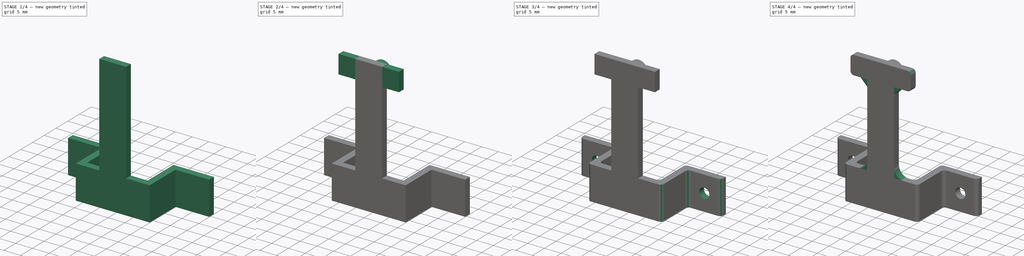
[diagram: build sequence overview — one tinted view per stage of 4, left to right]
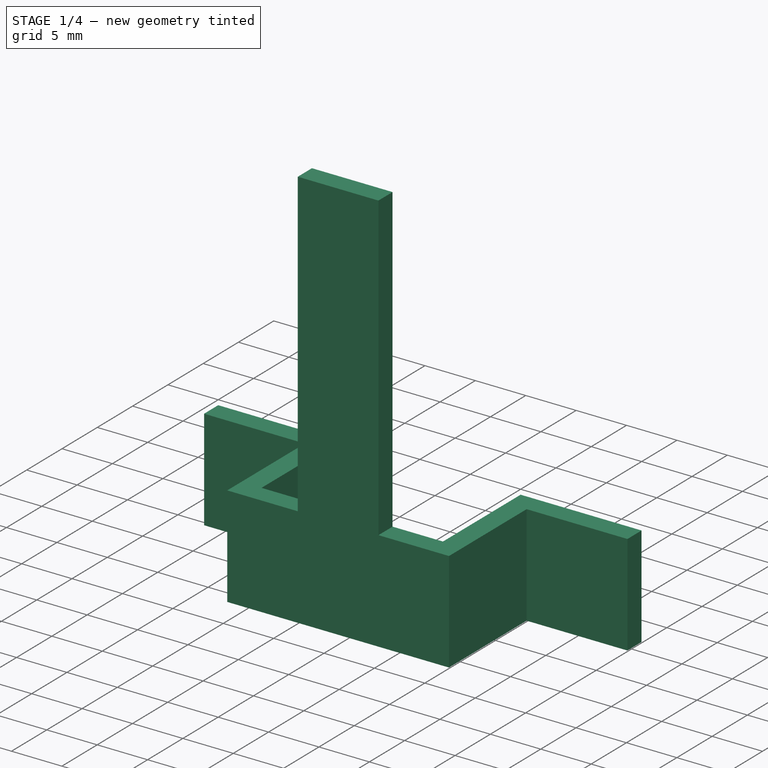
[diagram: stage 1 of 4 — iso view after this stage's code; geometry added in this stage tinted green]
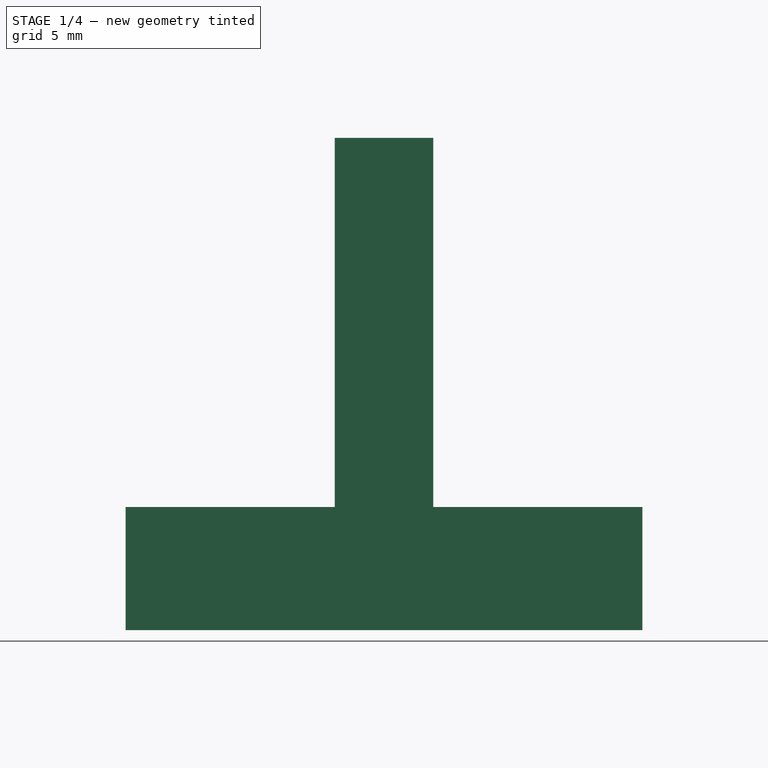
[diagram: stage 1 of 4 — front view after this stage's code; geometry added in this stage tinted green]
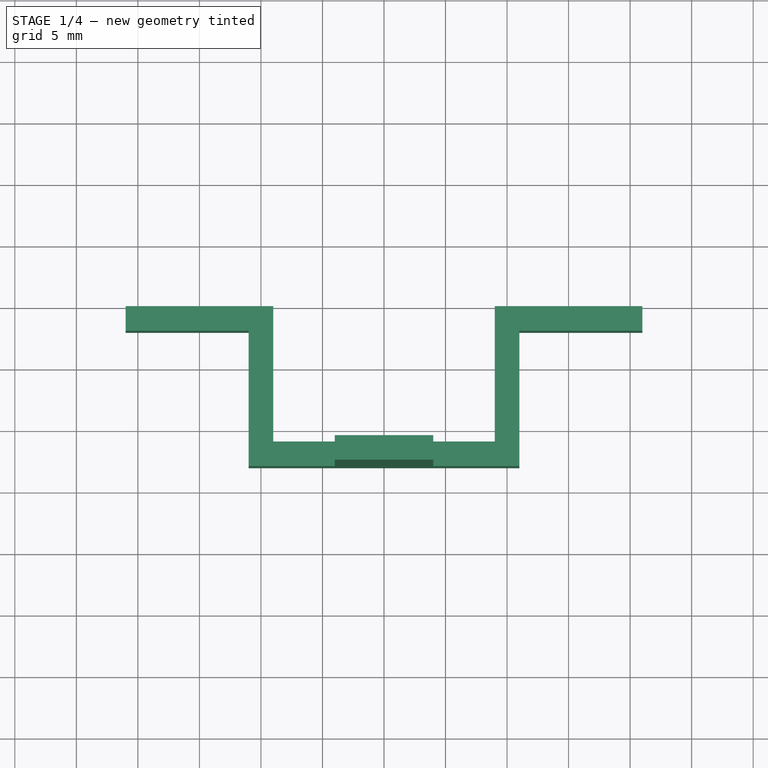
[diagram: stage 1 of 4 — top view after this stage's code; geometry added in this stage tinted green]
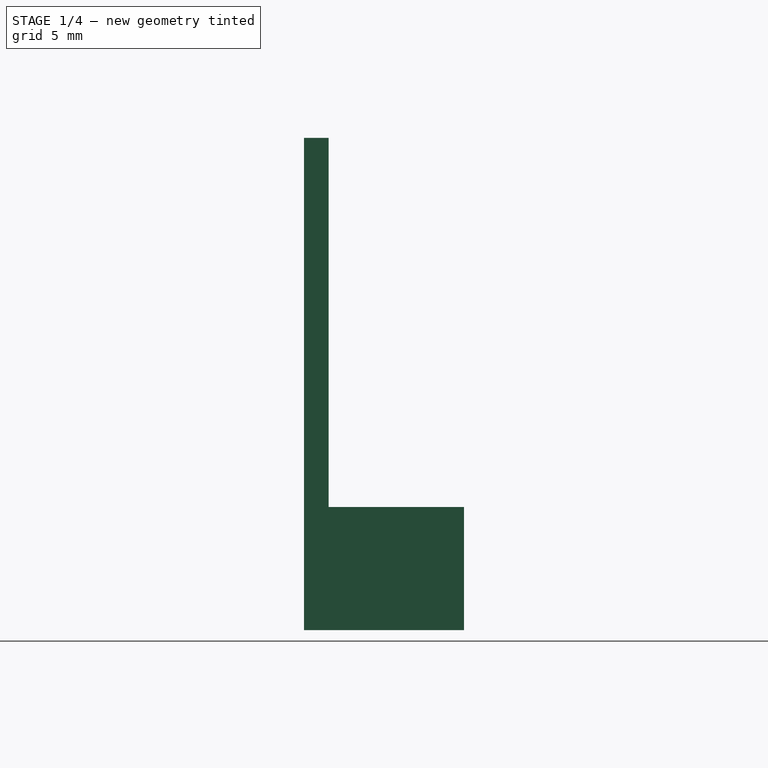
[diagram: stage 1 of 4 — right view after this stage's code; geometry added in this stage tinted green]
FCSTD DOCUMENT  (FreeCAD 0.21R33771 (Git))
Label: boom_klemme
License: All rights reserved
LicenseURL: http://en.wikipedia.org/wiki/All_rights_reserved
objects: Sketcher::SketchObject×6, PartDesign::Pad×4, PartDesign::Fillet×3, PartDesign::Mirrored×2, PartDesign::Line×1, PartDesign::Hole×1, PartDesign::Chamfer×1, PartDesign::Body×1
note: 28 computed .brp shape members not serialized (recipe doc carries the construction recipe); baked Part::Feature solids carry a one-line shape summary decoded from their .brp

FEATURE [Sketcher::SketchObject] Sketch
  FullyConstrained = true
  MapMode = 5
  Support = -> [XY_Plane]
  expr: Constraints[17] = (17 + 1) / 2
  sketch-geometry (8):
    g0: LineSegment StartX=-21 StartY=0 StartZ=0 EndX=-9 EndY=0 EndZ=0
    g1: LineSegment StartX=-9 StartY=0 StartZ=0 EndX=-9 EndY=-11 EndZ=0
    g2: LineSegment StartX=-9 StartY=-11 StartZ=0 EndX=0 EndY=-11 EndZ=0
    g3: LineSegment StartX=-21 StartY=0 StartZ=0 EndX=-21 EndY=-2 EndZ=0
    g4: LineSegment StartX=-21 StartY=-2 StartZ=0 EndX=-11 EndY=-2 EndZ=0
    g5: LineSegment StartX=-11 StartY=-2 StartZ=0 EndX=-11 EndY=-13 EndZ=0
    g6: LineSegment StartX=-11 StartY=-13 StartZ=0 EndX=0 EndY=-13 EndZ=0
    g7: LineSegment StartX=0 StartY=-13 StartZ=0 EndX=0 EndY=-11 EndZ=0
  constraints (24):
    c: Horizontal(g0)
    c: Coincident(g1,g0)
    c: Vertical(g1)
    c: Coincident(g2,g1)
    c: Coincident(g3,g0)
    c: Vertical(g3)
    c: Coincident(g4,g3)
    c: Horizontal(g4)
    c: Coincident(g5,g4)
    c: Vertical(g5)
    c: Coincident(g6,g5)
    c: PointOnObject(g6,g-2)
    c: Horizontal(g6)
    c: Coincident(g7,g6)
    c: Coincident(g7,g2)
    c: Vertical(g7)
    c: Horizontal(g2)
    c: Distance(g2) = 9
    c: Distance(g4,g1) = 2
    c: Distance(g3) = 2
    c: Distance(g7) = 2
    c: PointOnObject(g0,g-1)
    c: Distance(g-1,g2) = 11
    c: Distance(g4) = 10
FEATURE [PartDesign::Pad] Pad
  Direction = (0,0,1)
  Length = 10
  Length2 = 10
  Profile = -> Sketch
  ReferenceAxis = -> Sketch [N_Axis]
  Type = 0
FEATURE [PartDesign::Mirrored] Mirrored
  BaseFeature = -> Pad
  MirrorPlane = -> Sketch [V_Axis]
  Originals = -> [Pad]
FEATURE [Sketcher::SketchObject] Sketch001
  ExternalGeometry = -> [Mirrored]
  FullyConstrained = true
  MapMode = 5
  Placement = pos=(0,0,10) rot=(0,0,1;0rad)
  Support = -> [Mirrored]
  sketch-geometry (4):
    g0: LineSegment StartX=-4 StartY=-11 StartZ=0 EndX=-4 EndY=-13 EndZ=0
    g1: LineSegment StartX=4 StartY=-11 StartZ=0 EndX=4 EndY=-13 EndZ=0
    g2: LineSegment StartX=-4 StartY=-13 StartZ=0 EndX=4 EndY=-13 EndZ=0
    g3: LineSegment StartX=4 StartY=-11 StartZ=0 EndX=-4 EndY=-11 EndZ=0
  constraints (11):
    c: PointOnObject(g0,g-6)
    c: PointOnObject(g0,g-5)
    c: PointOnObject(g1,g-4)
    c: Coincident(g2,g0)
    c: Coincident(g2,g1)
    c: Coincident(g3,g1)
    c: Coincident(g3,g0)
    c: Vertical(g0)
    c: Vertical(g1)
    c: Symmetric(g0,g1,g-6)
    c: Distance(g2) = 8
FEATURE [PartDesign::Pad] Pad001
  BaseFeature = -> Mirrored
  Direction = (0,0,1)
  Length = 30
  Length2 = 10
  Profile = -> Sketch001
  ReferenceAxis = -> Sketch001 [N_Axis]
  Type = 0
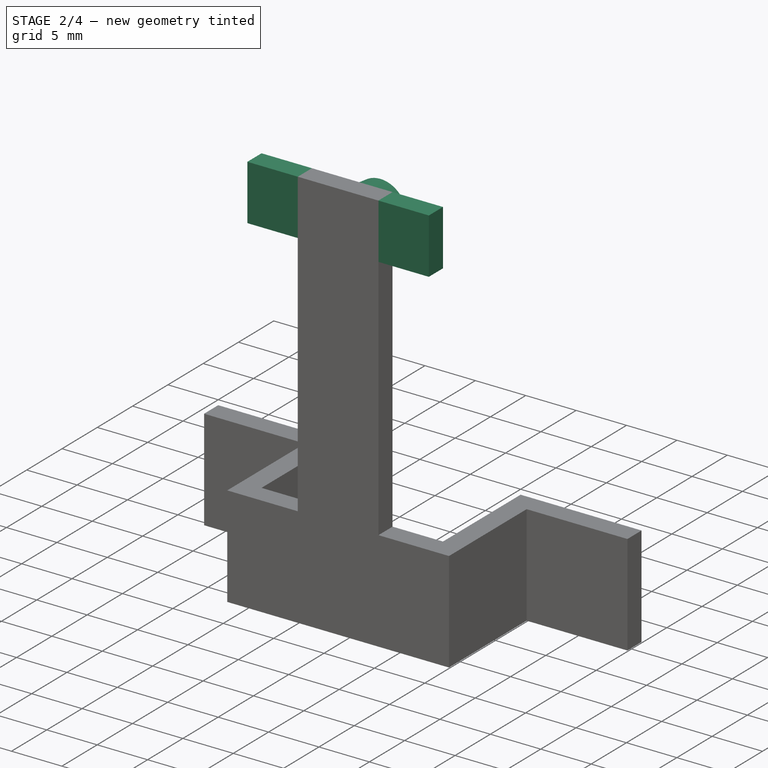
[diagram: stage 2 of 4 — iso view after this stage's code; geometry added in this stage tinted green]
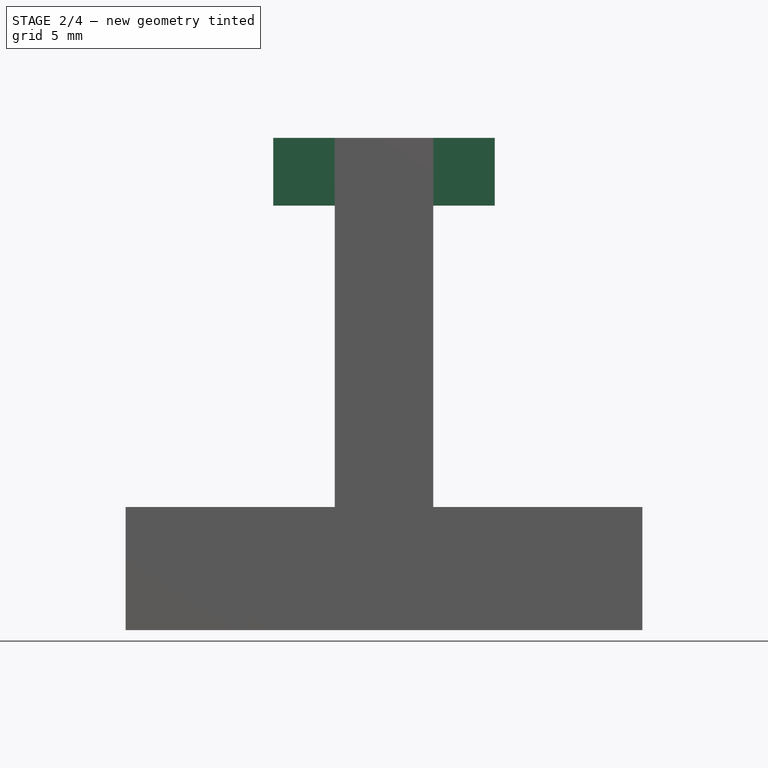
[diagram: stage 2 of 4 — front view after this stage's code; geometry added in this stage tinted green]
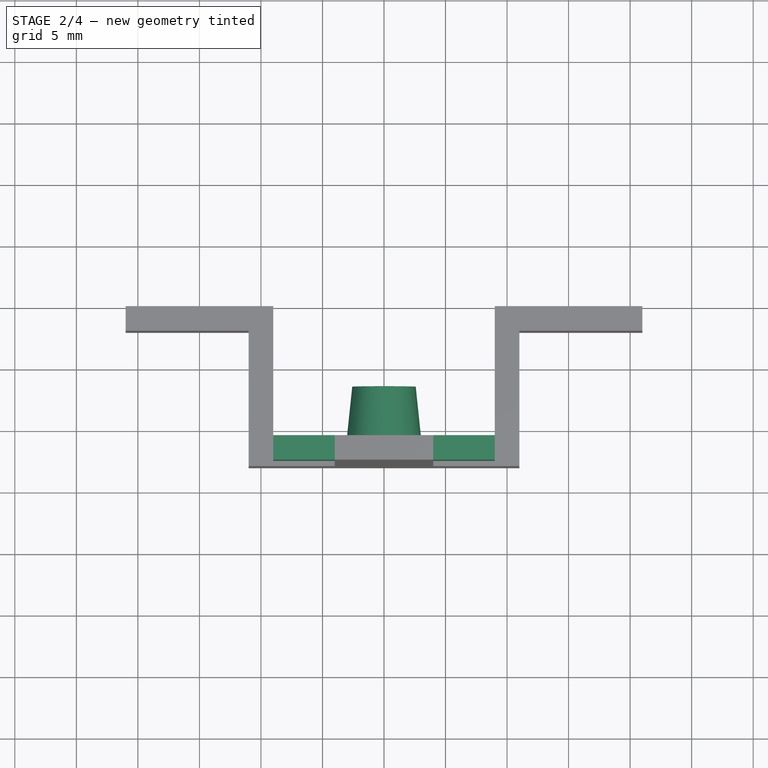
[diagram: stage 2 of 4 — top view after this stage's code; geometry added in this stage tinted green]
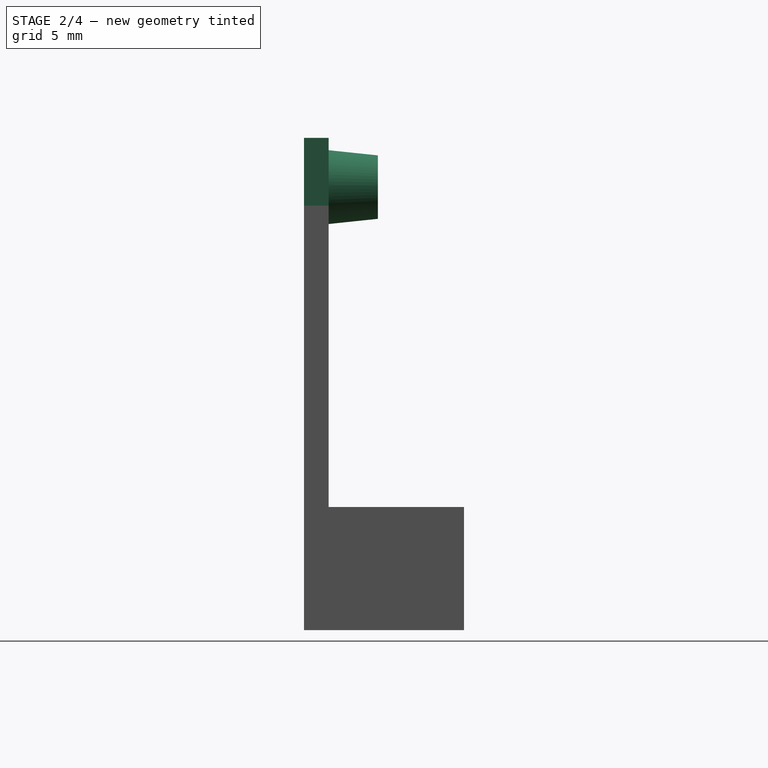
[diagram: stage 2 of 4 — right view after this stage's code; geometry added in this stage tinted green]
FEATURE [Sketcher::SketchObject] Sketch002
  ExternalGeometry = -> [Pad001]
  FullyConstrained = true
  MapMode = 5
  Placement = pos=(0,-11,0) rot=(0,0.707107,0.707107;3.14159rad)
  Support = -> [Pad001]
  expr: Constraints[1] = 5 + 1
  sketch-geometry (3):
    g0: Circle CenterX=0 CenterY=36 CenterZ=0 NormalX=0 NormalY=0 NormalZ=1 AngleXU=0 Radius=3
    g1: LineSegment StartX=-4 StartY=40 StartZ=0 EndX=-4 EndY=32 EndZ=0
    g2: LineSegment StartX=-4 StartY=32 StartZ=0 EndX=4 EndY=40 EndZ=0
  constraints (8):
    c: PointOnObject(g0,g-2)
    c: Diameter(g0) = 6
    c: Coincident(g1,g-3)
    c: Vertical(g1)
    c: Equal(g1,g-3)
    c: Coincident(g2,g1)
    c: Coincident(g2,g-3)
    c: PointOnObject(g0,g2)
FEATURE [PartDesign::Pad] Pad002
  BaseFeature = -> Pad001
  Direction = (0,1,-2e-16)
  Length = 4
  Length2 = 10
  Profile = -> Sketch002
  ReferenceAxis = -> Sketch002 [N_Axis]
  TaperAngle = -6
  Type = 0
FEATURE [Sketcher::SketchObject] Sketch003
  ExternalGeometry = -> [Pad002]
  FullyConstrained = true
  MapMode = 5
  Placement = pos=(0,0,40) rot=(0,0,1;0rad)
  Support = -> [Pad002]
  sketch-geometry (4):
    g0: LineSegment StartX=-4 StartY=-11 StartZ=0 EndX=4 EndY=-11 EndZ=0
    g1: LineSegment StartX=4 StartY=-13 StartZ=0 EndX=4 EndY=-11 EndZ=0
    g2: LineSegment StartX=4 StartY=-13 StartZ=0 EndX=-4 EndY=-13 EndZ=0
    g3: LineSegment StartX=-4 StartY=-13 StartZ=0 EndX=-4 EndY=-11 EndZ=0
  constraints (10):
    c: Coincident(g0,g-4)
    c: Horizontal(g0)
    c: Coincident(g1,g-3)
    c: Coincident(g1,g0)
    c: Vertical(g1)
    c: Coincident(g2,g1)
    c: Horizontal(g2)
    c: Coincident(g3,g2)
    c: Coincident(g3,g0)
    c: Vertical(g3)
FEATURE [PartDesign::Line] DatumLine
  AttacherType = Attacher::AttachEngineLine
  AttachmentOffset = pos=(-11,0,0) rot=(0,0,1;0rad)
  Length = 20
  MapMode = 29
  Placement = pos=(0,-24,40) rot=(0.57735,0.57735,0.57735;2.0944rad)
  ResizeMode = 0
  Support = -> [Pad002]
FEATURE [Sketcher::SketchObject] Sketch004
  ExternalGeometry = -> [Pad002]
  FullyConstrained = true
  MapMode = 5
  Placement = pos=(-4,0,0) rot=(0.57735,-0.57735,-0.57735;2.0944rad)
  Support = -> [Pad002]
  sketch-geometry (4):
    g0: LineSegment StartX=11 StartY=40 StartZ=0 EndX=13 EndY=40 EndZ=0
    g1: LineSegment StartX=13 StartY=40 StartZ=0 EndX=13 EndY=34.5 EndZ=0
    g2: LineSegment StartX=13 StartY=34.5 StartZ=0 EndX=11 EndY=34.5 EndZ=0
    g3: LineSegment StartX=11 StartY=34.5 StartZ=0 EndX=11 EndY=40 EndZ=0
  constraints (11):
    c: Coincident(g0,g1)
    c: Coincident(g1,g2)
    c: Coincident(g2,g3)
    c: Coincident(g3,g0)
    c: Horizontal(g0)
    c: Horizontal(g2)
    c: Vertical(g1)
    c: Vertical(g3)
    c: Coincident(g0,g-4)
    c: PointOnObject(g1,g-3)
    c: Distance(g1) = 5.5
FEATURE [PartDesign::Pad] Pad003
  BaseFeature = -> Pad002
  Direction = (-1,0,0)
  Length = 5
  Length2 = 10
  Profile = -> Sketch004
  ReferenceAxis = -> Sketch004 [N_Axis]
  Type = 0
FEATURE [PartDesign::Mirrored] Mirrored001
  BaseFeature = -> Pad003
  MirrorPlane = -> YZ_Plane
  Originals = -> [Pad003]
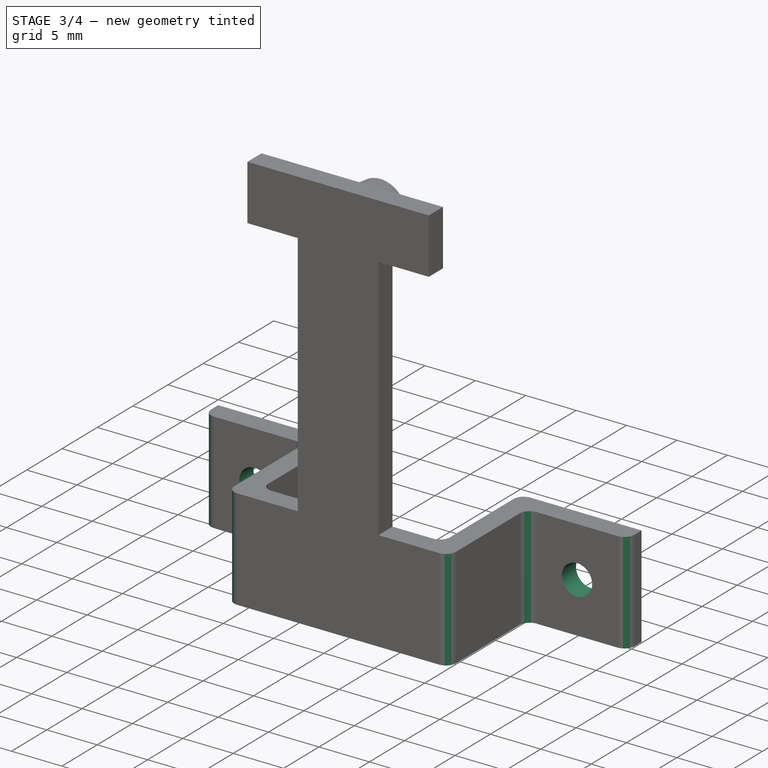
[diagram: stage 3 of 4 — iso view after this stage's code; geometry added in this stage tinted green]
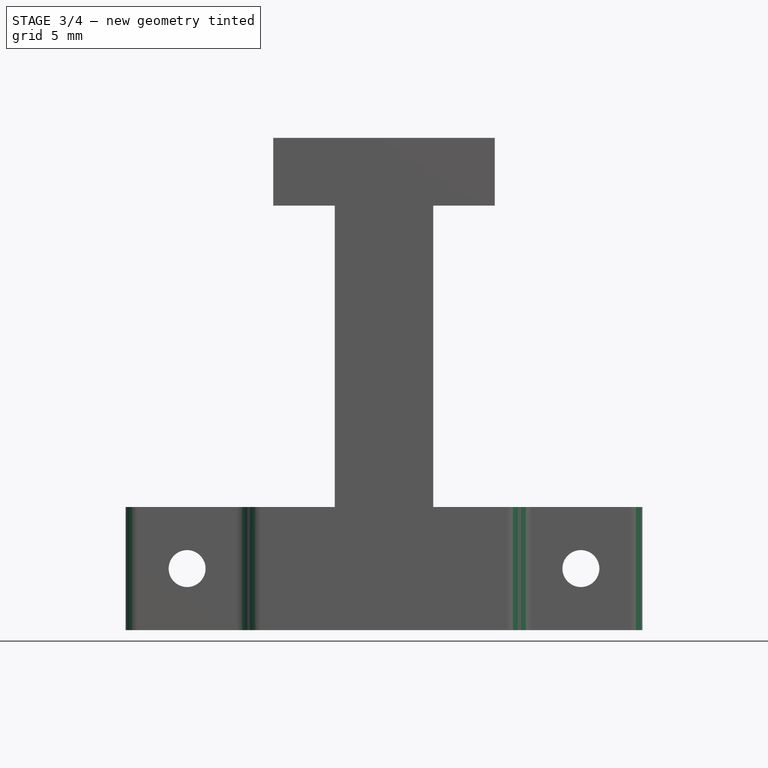
[diagram: stage 3 of 4 — front view after this stage's code; geometry added in this stage tinted green]
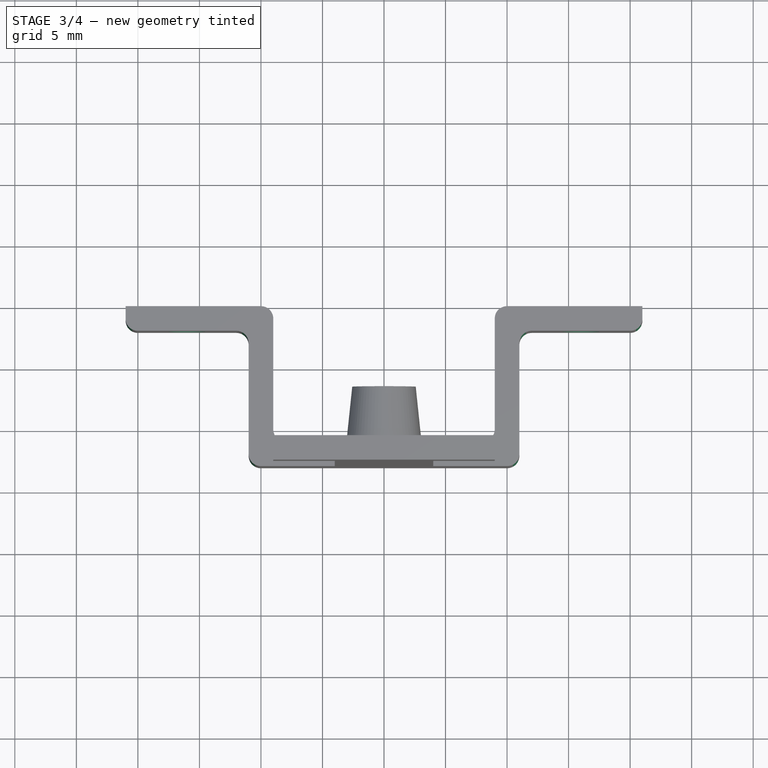
[diagram: stage 3 of 4 — top view after this stage's code; geometry added in this stage tinted green]
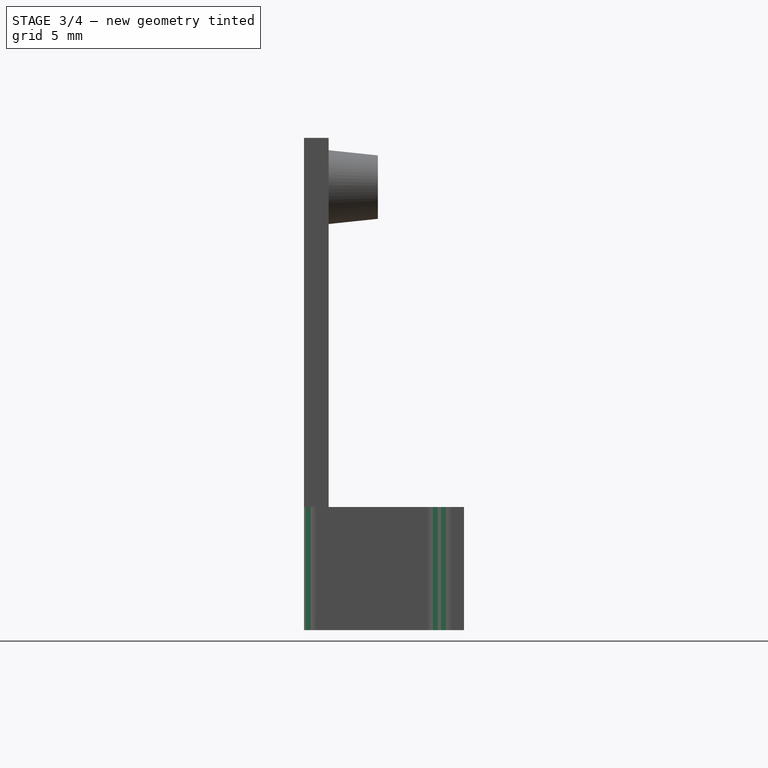
[diagram: stage 3 of 4 — right view after this stage's code; geometry added in this stage tinted green]
FEATURE [Sketcher::SketchObject] Sketch005
  ExternalGeometry = -> [Mirrored001]
  FullyConstrained = true
  MapMode = 5
  Placement = pos=(0,-2,0) rot=(1,0,0;1.5708rad)
  Support = -> [Mirrored001]
  sketch-geometry (5):
    g0: Circle CenterX=-16 CenterY=5 CenterZ=0 NormalX=0 NormalY=0 NormalZ=1 AngleXU=0 Radius=1.5
    g1: Circle CenterX=16 CenterY=5 CenterZ=0 NormalX=0 NormalY=0 NormalZ=1 AngleXU=0 Radius=1.5
    g2: LineSegment StartX=-21 StartY=5 StartZ=0 EndX=21 EndY=5 EndZ=0
    g3: LineSegment StartX=-11 StartY=10 StartZ=0 EndX=-21 EndY=0 EndZ=0
    g4: LineSegment StartX=11 StartY=10 StartZ=0 EndX=21 EndY=0 EndZ=0
  constraints (13):
    c: Equal(g1,g0)
    c: Diameter(g1) = 3
    c: PointOnObject(g2,g-5)
    c: Horizontal(g2)
    c: Symmetric(g-4,g-4,g2)
    c: Coincident(g3,g-6)
    c: Coincident(g3,g-5)
    c: Coincident(g4,g-7)
    c: Coincident(g4,g-4)
    c: PointOnObject(g0,g3)
    c: PointOnObject(g0,g2)
    c: PointOnObject(g1,g4)
    c: PointOnObject(g1,g2)
FEATURE [PartDesign::Hole] Hole
  BaseFeature = -> Mirrored001
  CustomThreadClearance = 0
  Depth = 120.067
  DepthType = 1
  Diameter = 3
  DrillForDepth = false
  DrillPoint = 1
  DrillPointAngle = 118
  HoleCutCountersinkAngle = 90
  HoleCutCustomValues = false
  HoleCutDepth = 0
  HoleCutDiameter = 6.1
  HoleCutType = 0
  ModelThread = false
  Profile = -> Sketch005
  Tapered = false
  TaperedAngle = 90
  ThreadClass = 0
  ThreadDepth = 120.067
  ThreadDepthType = 0
  ThreadDirection = 0
  ThreadFit = 2
  ThreadSize = 0
  ThreadType = 0
  Threaded = false
  UseCustomThreadClearance = false
FEATURE [PartDesign::Fillet] Fillet
  Base = -> Hole [Edge6,Edge24,Edge34,Edge53,Edge58,Edge56,Edge40,Edge50,Edge4,Edge21]
  BaseFeature = -> Hole
  Radius = 1
  SupportTransform = false
  UseAllEdges = false
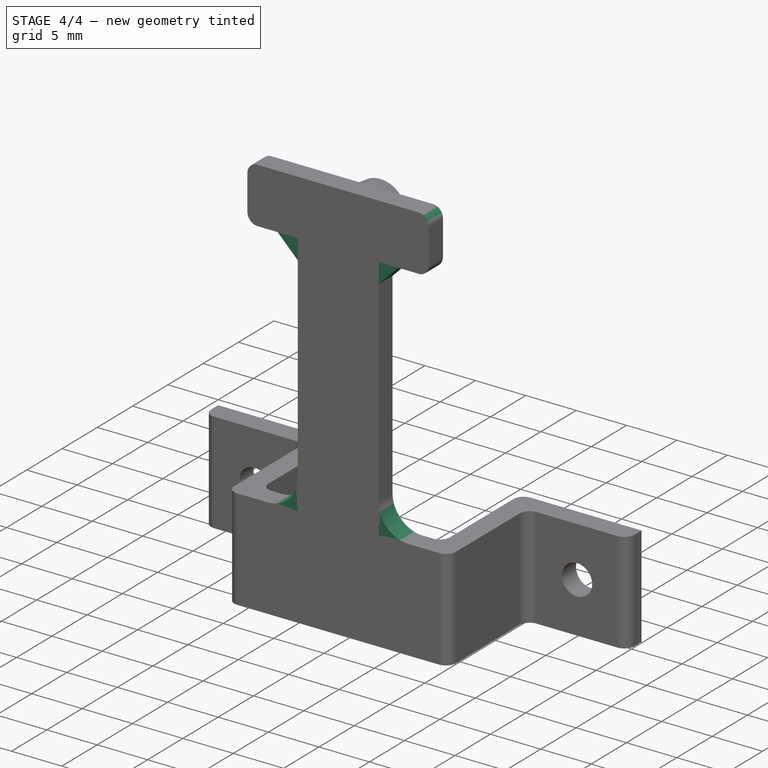
[diagram: stage 4 of 4 — iso view after this stage's code; geometry added in this stage tinted green]
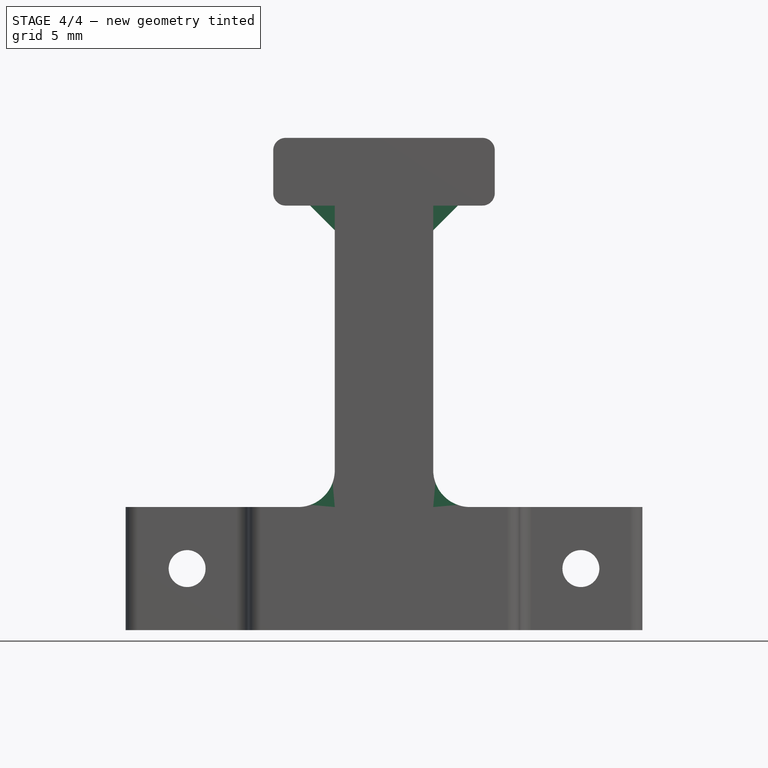
[diagram: stage 4 of 4 — front view after this stage's code; geometry added in this stage tinted green]
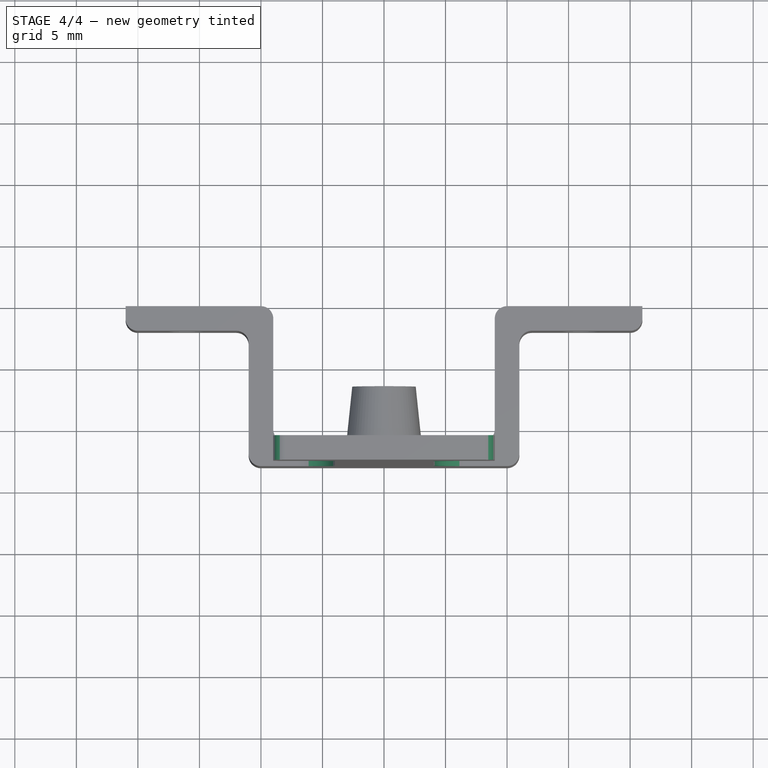
[diagram: stage 4 of 4 — top view after this stage's code; geometry added in this stage tinted green]
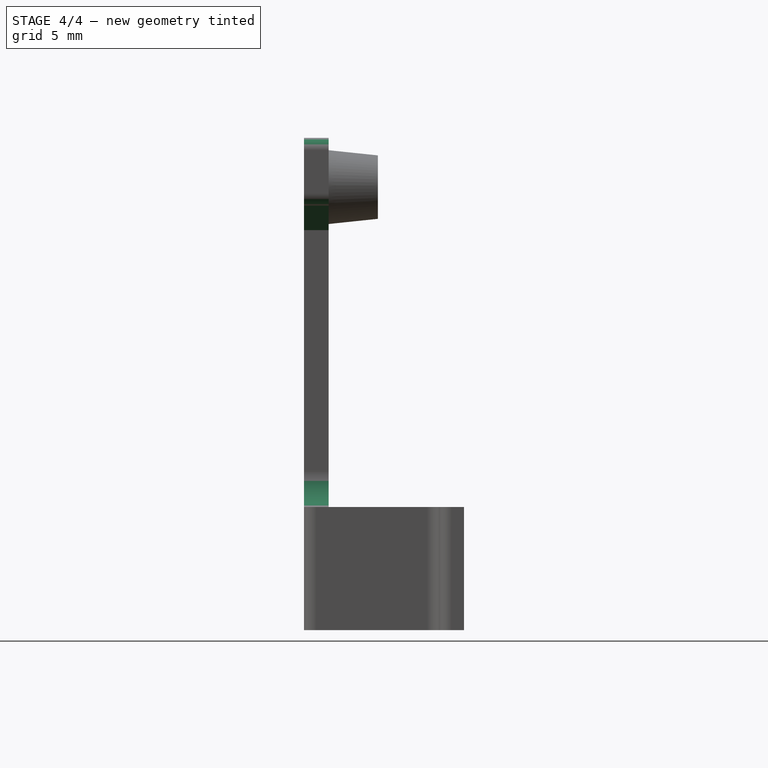
[diagram: stage 4 of 4 — right view after this stage's code; geometry added in this stage tinted green]
FEATURE [PartDesign::Fillet] Fillet001
  Base = -> Fillet [Edge28,Edge99]
  BaseFeature = -> Fillet
  Radius = 3
  SupportTransform = false
  UseAllEdges = false
FEATURE [PartDesign::Chamfer] Chamfer
  Angle = 45
  Base = -> Fillet001 [Edge75,Edge62]
  BaseFeature = -> Fillet001
  ChamferType = 0
  FlipDirection = false
  Size = 2
  Size2 = 1
  SupportTransform = false
  UseAllEdges = false
FEATURE [PartDesign::Fillet] Fillet002
  Base = -> Chamfer [Edge88,Edge85,Edge56,Edge57]
  BaseFeature = -> Chamfer
  Radius = 1
  SupportTransform = false
  UseAllEdges = false
FEATURE [PartDesign::Body] Body  label="body"
  Group = -> [Sketch,Pad,Mirrored,Sketch001,Pad001,Sketch002,Pad002,Sketch003,DatumLine,Sketch004,Pad003,Mirrored001,Sketch005,Hole,Fillet,Fillet001,Chamfer,Fillet002]
  Origin = -> Origin
  Tip = -> Fillet002
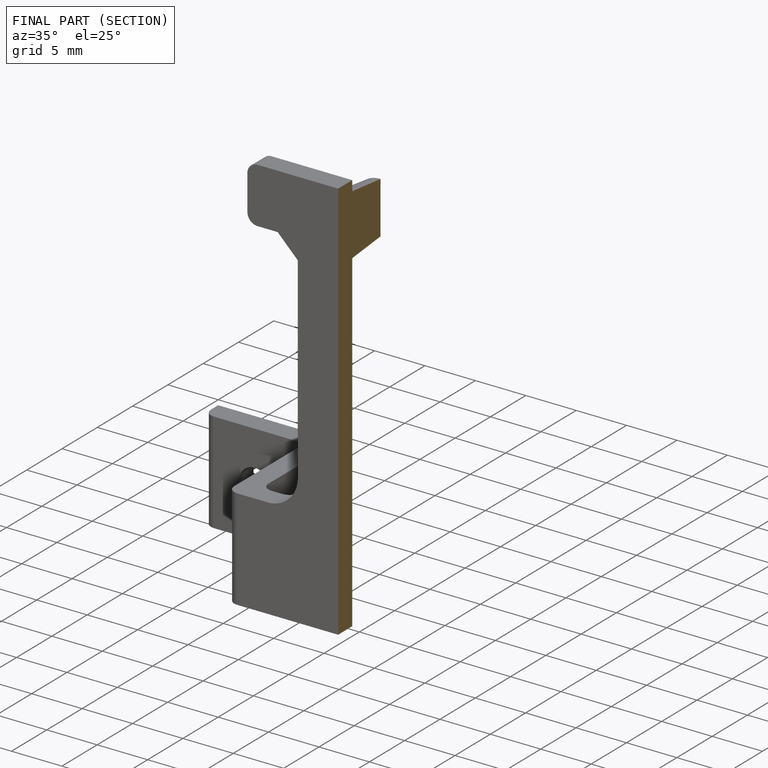
[diagram: finished part — half-section view (interior)]
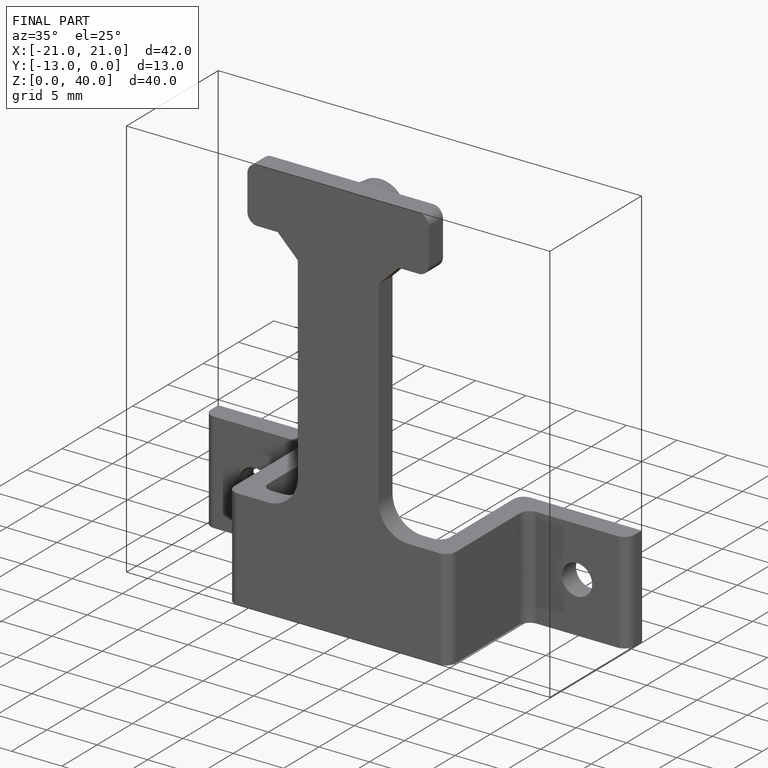
[diagram: finished part — iso view with bounding-box wireframe]
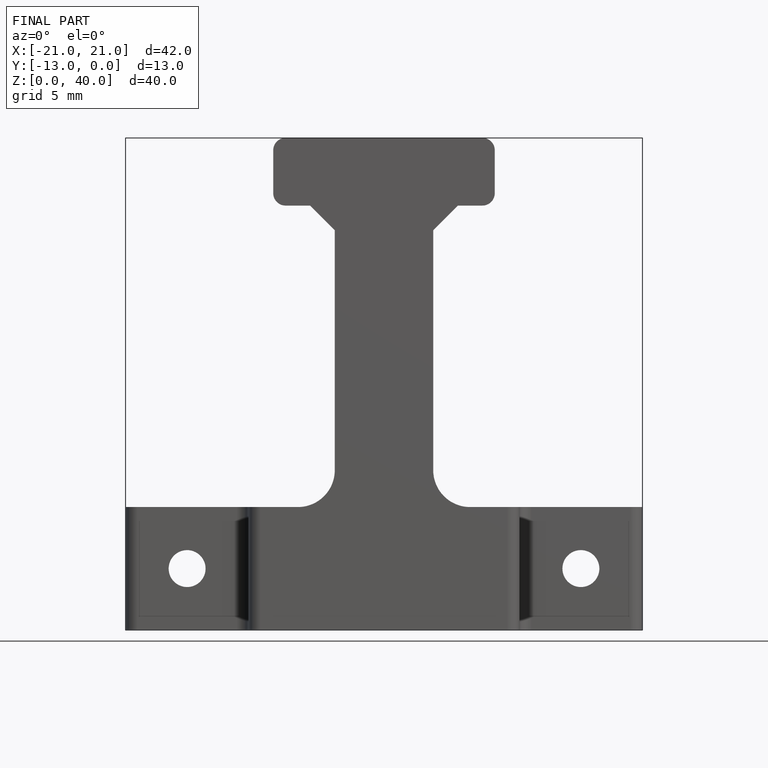
[diagram: finished part — front view with bounding-box wireframe]
